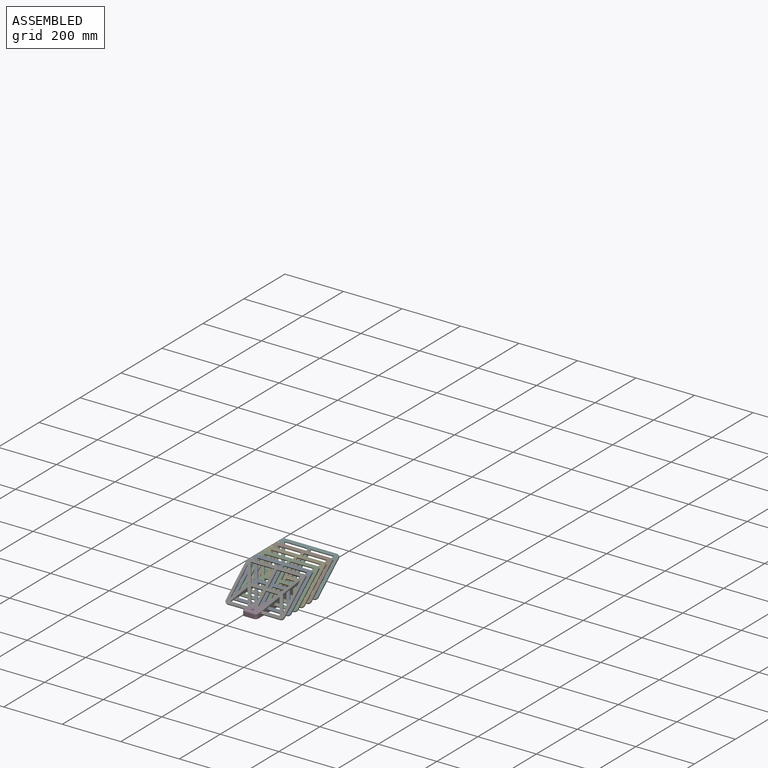
[diagram: assembled view]
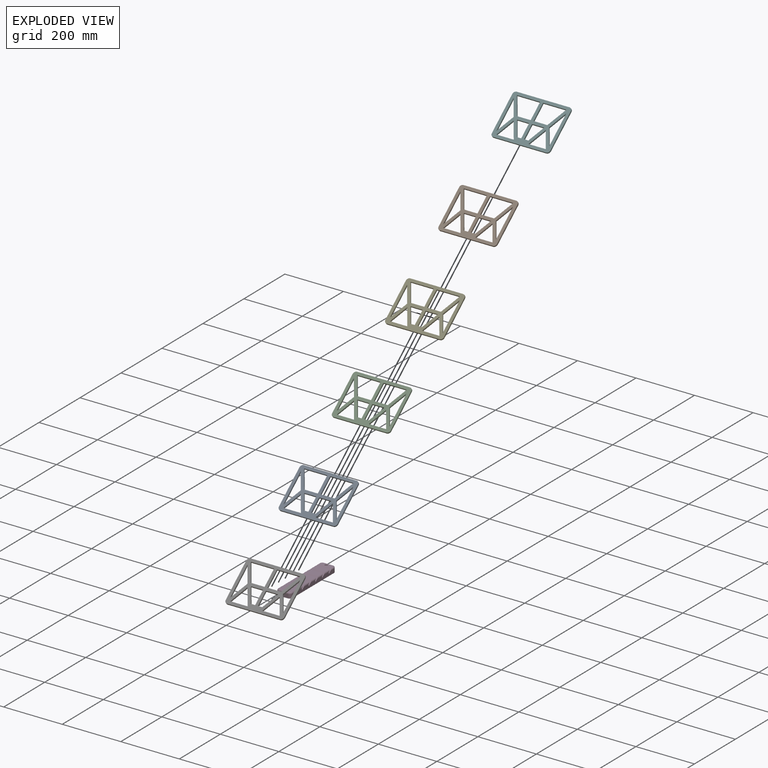
[diagram: exploded view]
GUIDED TOUR — MATED ASSEMBLY (Onshape document bfab527c2a19bf8010437ad4, AutoMate assembly bfab527c2a19bf8010437ad4_e69fc4ce37d980dc7a7c7cb6_1cfd2c61db2470768fffc46c_default)

This assembly has 7 components, labeled P0..P6 below (a component is one placed occurrence of a part; the same part can appear more than once), held together by 6 mates. A mate is a constraint between two components; its type names the relative motion it leaves free:
  FASTENED — locks the two components together rigidly (no relative motion).
Axis/direction vectors are unit vectors and 'through' points are millimeter coordinates, both in the assembly's world frame.

MATES
  1. FASTENED "Fastened 6": P5 <-> P3, direction (0.000, -0.768, -0.640) through (-31.99, 58.69, 2.15) mm
  2. FASTENED "Fastened 5": P1 <-> P3, direction (0.000, -0.768, -0.640) through (-31.99, 25.88, 2.15) mm
  3. FASTENED "Fastened 4": P4 <-> P3, direction (0.000, -0.768, -0.640) through (-31.99, -6.93, 2.15) mm
  4. FASTENED "Fastened 1": P6 <-> P3, direction (0.000, -0.768, -0.640) through (-31.99, -105.36, 2.15) mm
  5. FASTENED "Fastened 2": P0 <-> P3, direction (0.000, -0.768, -0.640) through (-31.99, -72.55, 2.15) mm
  6. FASTENED "Fastened 3": P2 <-> P3, direction (0.000, -0.768, -0.640) through (-31.99, -39.74, 2.15) mm

ASSEMBLY ORDER
  1. P6 — the base component [order verified]
  2. P3 [order verified]
  3. P0 [order verified]
  4. P2 [order verified]
  5. P4 [order verified]
  6. P1 [order verified]
  7. P5 [order verified]
Order-tag legend:
  [order verified] — this step's position reverses a verified removal order: the component was checked to insert without passing through the ones already placed.

Of the 7 components, 6 carry the full construction recipe — the FeatureScript program that regenerates the part's solid from scratch; the rest are supplied as boundary geometry only.
Each toured component is shown spotlighted twice — in the assembled view, then in the exploded view, where a leader line traces a displaced component back to its assembled socket (saturated green if recipe-attached, orange if geometry-only; every other component desaturated gray) — followed by its recipe or geometry summary and the mates that hold it.
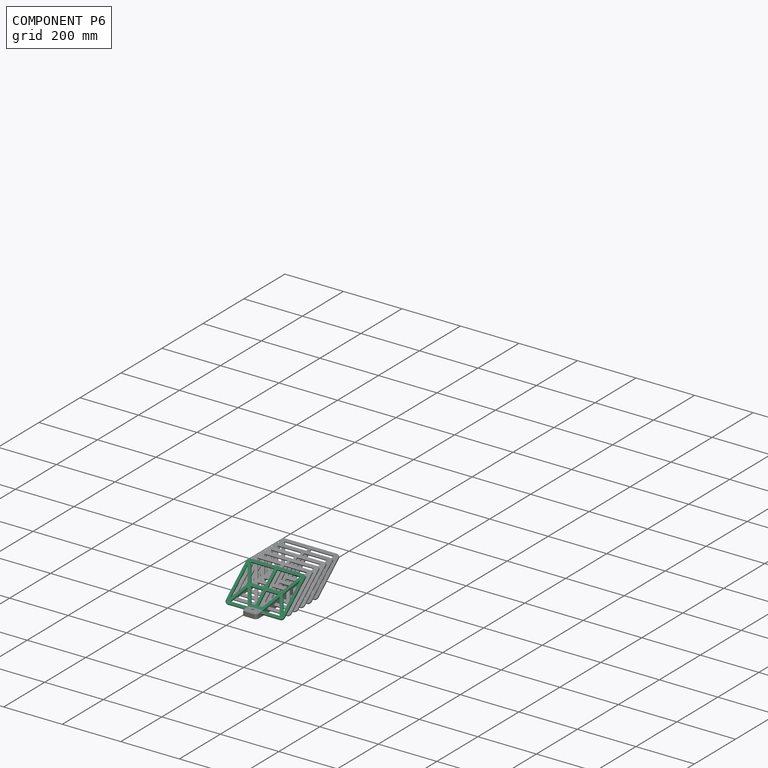
[diagram: component P6 — assembled]
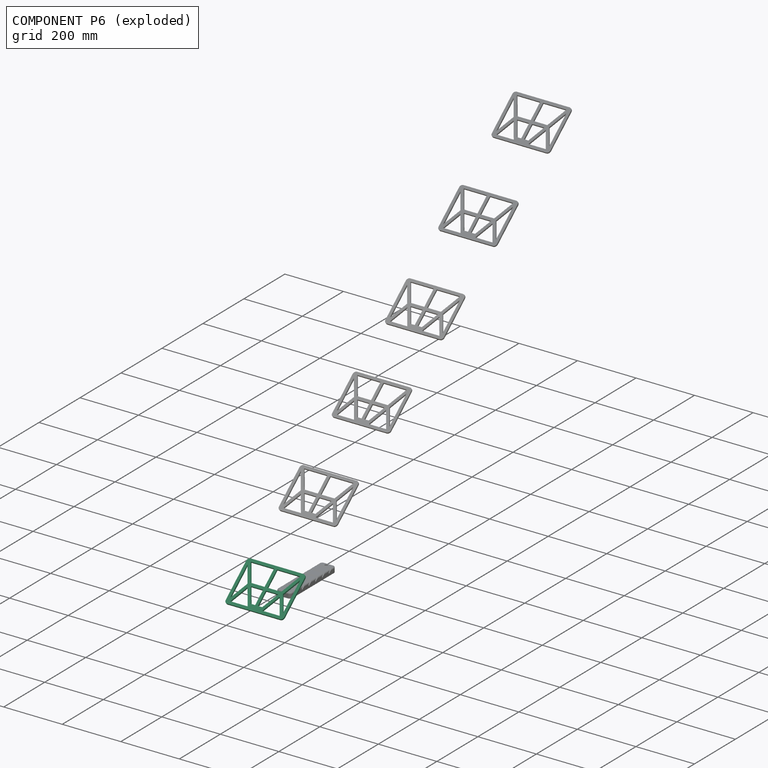
[diagram: component P6 — exploded]
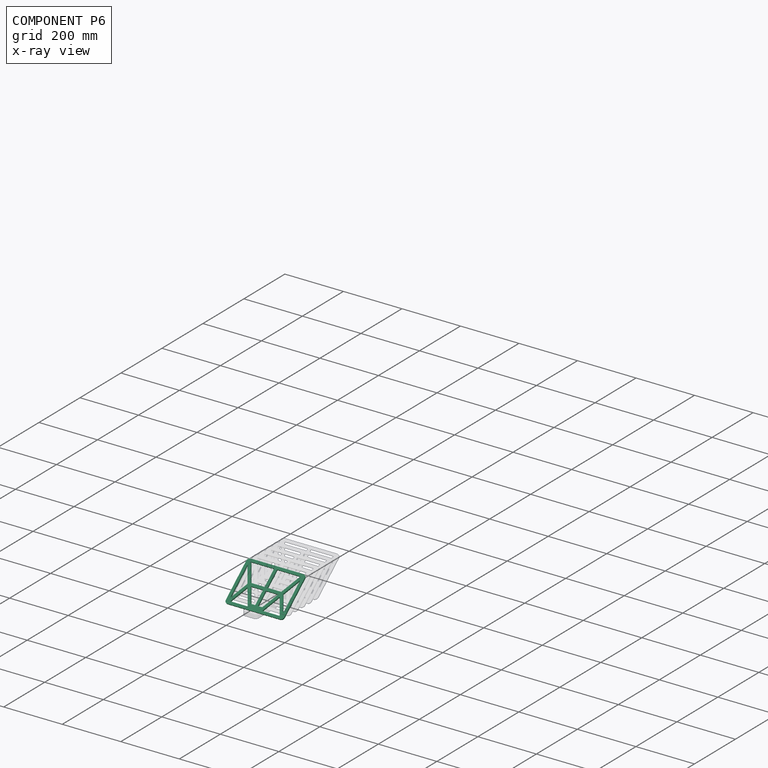
[diagram: component P6 — x-ray view]
COMPONENT P6 — same part as P0 (CADFS 00968949); its construction recipe is shown at P0.
Held by: FASTENED mate "Fastened 1" to P3.
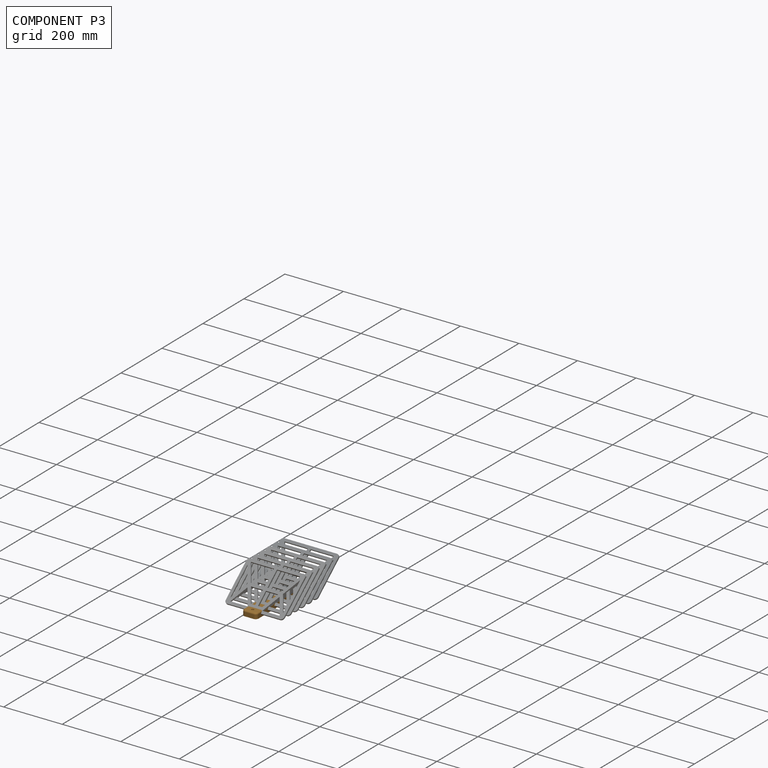
[diagram: component P3 — assembled]
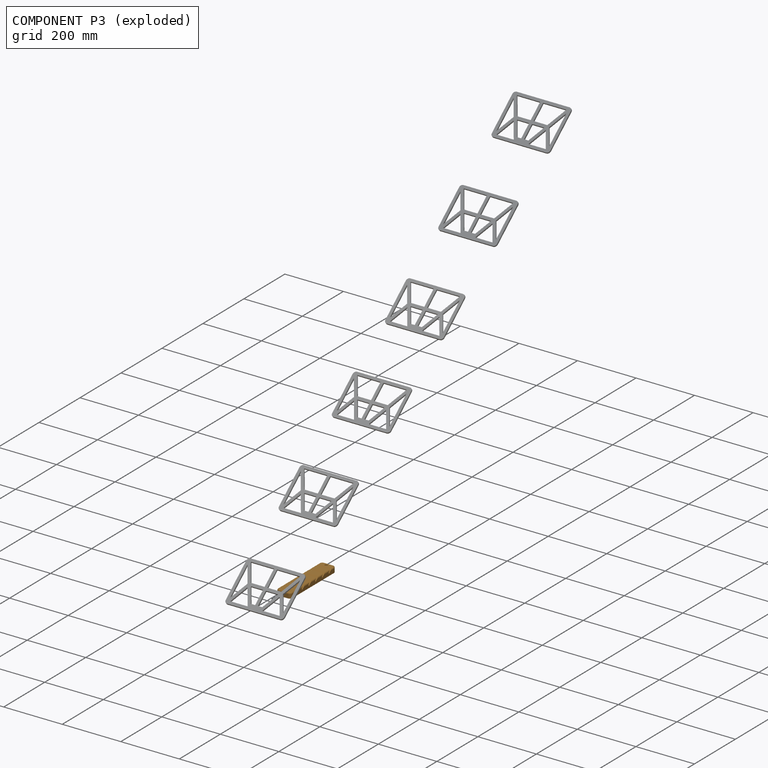
[diagram: component P3 — exploded]
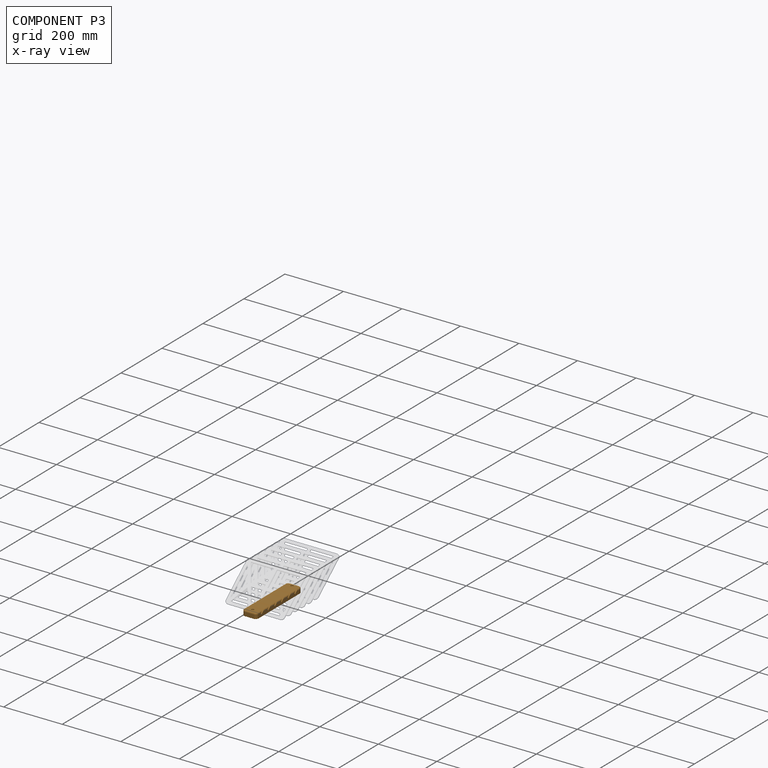
[diagram: component P3 — x-ray view]
COMPONENT P3 — geometry summary (no construction recipe available for this part):
  bounding box: 223.5 x 51.6 x 18.5 mm
  B-rep topology: 1 solid, 66 faces, 360 edges
  volume: 178033 mm^3 (83% of its bounding box)
  symmetry: mirror-symmetric across its x mid-plane
Held by: FASTENED mate "Fastened 6" to P5; FASTENED mate "Fastened 5" to P1; FASTENED mate "Fastened 4" to P4; FASTENED mate "Fastened 1" to P6; FASTENED mate "Fastened 2" to P0; FASTENED mate "Fastened 3" to P2.
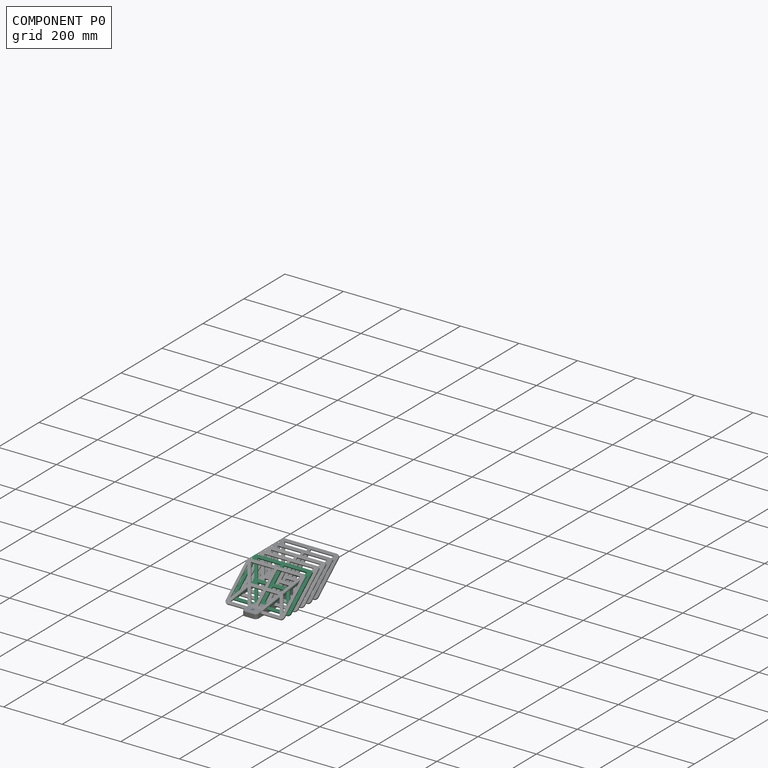
[diagram: component P0 — assembled]
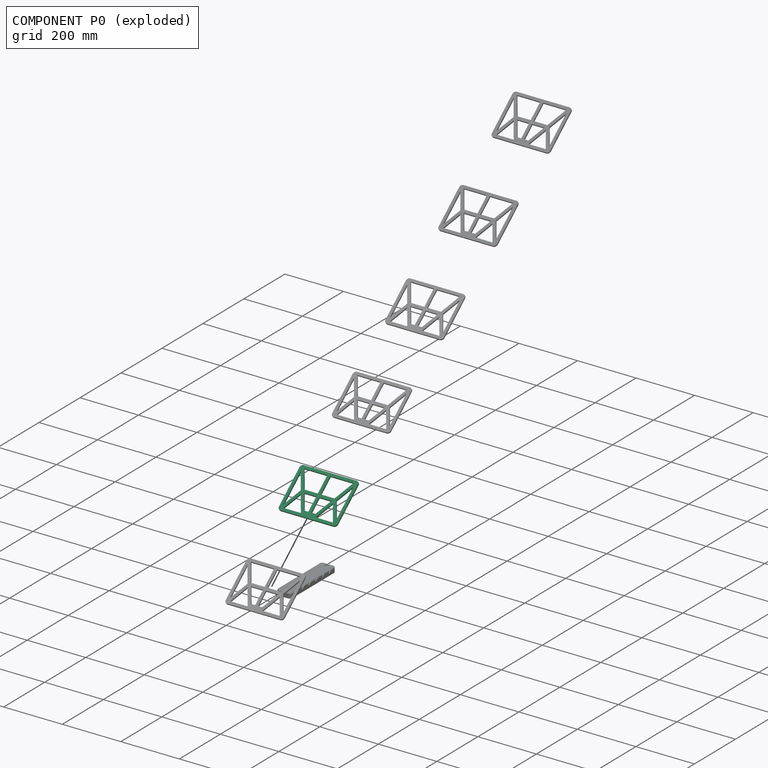
[diagram: component P0 — exploded]
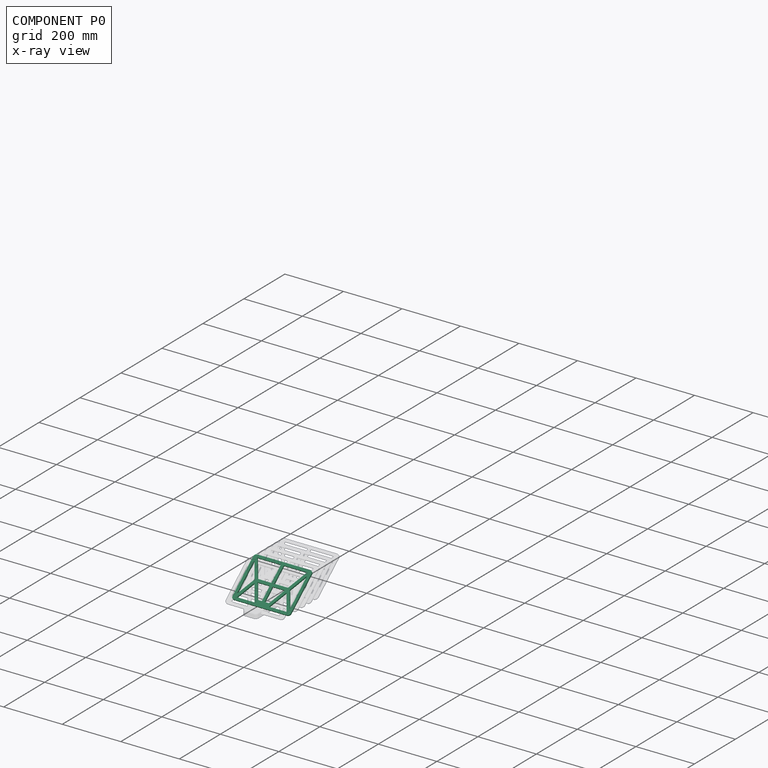
[diagram: component P0 — x-ray view]
COMPONENT P0 — recipe-attached (CADFS 00968949, mesh-verified: the recipe's output STEP matches this component's geometry to below the mesh-comparison resolution (tessellation chordal tolerance ~0.375 mm)).
Held by: FASTENED mate "Fastened 2" to P3.
Construction recipe (FeatureScript — the CAD program that rebuilds this solid; sketch coordinates are in the units given by the * unit suffixes, e.g. mm):

FeatureScript 1511;
import(path : "onshape/std/geometry.fs", version : "1511.0");
import(path : "onshape/std/common.fs", version : "1511.0");
const mm = millimeter;
const VERTEX = EntityType.VERTEX;
const EDGE = EntityType.EDGE;
const FACE = EntityType.FACE;
const BODY = EntityType.BODY;
function v(x, y){return vector(x, y);}
function OD(order){return orderDisambiguation(order);}
function OSD(set){return originalSetDisambiguation(set);}
function TD(topology){return topologyDisambiguation(topology);}
function TDD(query){return trueDependencyDisambiguation(query);}
function sQuery(a, b, c) {return sketchEntityQuery(a, b, c);}

annotation { "Feature Type Name" : "Feature", "Feature Type Description" : "" }
export const myFeature = defineFeature(function(context is Context, id is Id, definition is map)
    precondition{}
    {
        {
            var Q0;
            Q0=qCreatedBy(makeId("Top.planeOp"),FACE);
            var sketch = newSketch(context, id + "F0", { "sketchPlane" : qUnion([Q0])});
            skLineSegment(sketch, "E0.bottom", {"start": v(-100, 75) * mm, "end": v(100, 75) * mm});
            skLineSegment(sketch, "E0.top", {"start": v(-100, -75) * mm, "end": v(100, -75) * mm});
            skLineSegment(sketch, "E0.left", {"start": v(-100, 75) * mm, "end": v(-100, -75) * mm});
            skLineSegment(sketch, "E0.right", {"start": v(100, 75) * mm, "end": v(100, -75) * mm});
            skLineSegment(sketch, "E1.0", {"start": v(-90, 65) * mm, "end": v(90, 65) * mm});
            skLineSegment(sketch, "E1.1", {"start": v(-90, 65) * mm, "end": v(-90, -65) * mm});
            skLineSegment(sketch, "E1.2", {"start": v(-90, -65) * mm, "end": v(-25, -65) * mm});
            skLineSegment(sketch, "E1.3", {"start": v(90, 65) * mm, "end": v(90, -65) * mm});
            skLineSegment(sketch, "E2.top", {"start": v(-25, -55) * mm, "end": v(25, -55) * mm});
            skLineSegment(sketch, "E2.left", {"start": v(-25, -65) * mm, "end": v(-25, -55) * mm});
            skLineSegment(sketch, "E2.right", {"start": v(25, -65) * mm, "end": v(25, -55) * mm});
            skLineSegment(sketch, "E3.trimOffspring", {"start": v(25, -65) * mm, "end": v(90, -65) * mm});
            skLineSegment(sketch, "E4", {"start": v(-25, -55) * mm, "end": v(-90, 65) * mm, "construction": true});
            skLineSegment(sketch, "E5", {"start": v(25, -55) * mm, "end": v(90, 65) * mm, "construction": true});
            skLineSegment(sketch, "E6", {"start": v(0, -55) * mm, "end": v(0, 65) * mm, "construction": true});
            skLineSegment(sketch, "E7", {"start": v(-84.31, 65) * mm, "end": v(-19.31, -55) * mm});
            skLineSegment(sketch, "E8", {"start": v(-24.63, -66.17) * mm, "end": v(-90, 54.5) * mm});
            skLineSegment(sketch, "E9", {"start": v(-5, -55) * mm, "end": v(-5, 65) * mm});
            skLineSegment(sketch, "E10", {"start": v(5, 65) * mm, "end": v(5, -55) * mm});
            skLineSegment(sketch, "E11", {"start": v(24.13, -67.1) * mm, "end": v(90, 54.5) * mm});
            skLineSegment(sketch, "E12", {"start": v(19.31, -55) * mm, "end": v(84.31, 65) * mm});
            skLineSegment(sketch, "E13", {"start": v(-54.8, 0) * mm, "end": v(54.8, 0) * mm, "construction": true});
            skLineSegment(sketch, "E14", {"start": v(-54.8, 0) * mm, "end": v(-90, -65) * mm, "construction": true});
            skLineSegment(sketch, "E15", {"start": v(54.8, 0) * mm, "end": v(90, -65) * mm, "construction": true});
            skLineSegment(sketch, "E16", {"start": v(0, 5.25) * mm, "end": v(57.63, 5.25) * mm});
            skLineSegment(sketch, "E17", {"start": v(57.63, 5.25) * mm, "end": v(90, -54.5) * mm});
            skLineSegment(sketch, "E18", {"start": v(0, -5.25) * mm, "end": v(51.95, -5.25) * mm});
            skLineSegment(sketch, "E19", {"start": v(51.95, -5.25) * mm, "end": v(84.31, -65) * mm});
            skLineSegment(sketch, "E20", {"start": v(0, -5.25) * mm, "end": v(-51.95, -5.25) * mm});
            skLineSegment(sketch, "E21", {"start": v(-51.95, -5.25) * mm, "end": v(-84.31, -65) * mm});
            skLineSegment(sketch, "E22", {"start": v(0, 5.25) * mm, "end": v(-57.63, 5.25) * mm});
            skLineSegment(sketch, "E23", {"start": v(-57.63, 5.25) * mm, "end": v(-90, -54.5) * mm});
            skSolve(sketch);
        }
        {
            var Q0;
            Q0=makeQuery(id+"F0.imprint","IMPRINT",FACE,{"disambiguationData":[TD([[makeQuery(id+"F0.imprint","IMPRINT",EDGE,{"derivedFrom":sQuery(id+"F0.wireOp",EDGE,"E0.bottom")}),-1.0]])]});
            var Q1;
            {var subQ0=sQuery(id+"F0.wireOp",EDGE,"E2.left");Q1=makeQuery(id+"F0.imprint","IMPRINT",FACE,{"disambiguationData":[TD([[makeQuery(id+"F0.imprint","IMPRINT",EDGE,{"derivedFrom":subQ0}),1.0]])]});}
            var Q2;
            {var subQ0=sQuery(id+"F0.wireOp",EDGE,"E9");Q2=makeQuery(id+"F0.imprint","IMPRINT",FACE,{"disambiguationData":[TD([[makeQuery(id+"F0.imprint","IMPRINT",EDGE,{"derivedFrom":subQ0}),-1.0]])]});}
            var Q3;
            {var subQ0=sQuery(id+"F0.wireOp",EDGE,"E2.right");Q3=makeQuery(id+"F0.imprint","IMPRINT",FACE,{"disambiguationData":[TD([[makeQuery(id+"F0.imprint","IMPRINT",EDGE,{"derivedFrom":subQ0}),-1.0]])]});}
            var Q4;
            {var subQ1=sQuery(id+"F0.wireOp",EDGE,"E1.2");var subQ7=sQuery(id+"F0.wireOp",EDGE,"E1.1");var subQ9=makeQuery(id+"F0.imprint","INTERSECT",VERTEX,{"derivedFrom":[subQ7,subQ1]});Q4=makeQuery(id+"F0.imprint","IMPRINT",FACE,{"disambiguationData":[TD([[makeQuery(id+"F0.imprint","IMPRINT",EDGE,{"disambiguationData":[TD([[subQ9,1.0]])],"derivedFrom":subQ7}),1.0]])]});}
            var Q5;
            {var subQ1=sQuery(id+"F0.wireOp",EDGE,"E1.1");var subQ6=sQuery(id+"F0.wireOp",EDGE,"E1.0");var subQ10=makeQuery(id+"F0.imprint","INTERSECT",VERTEX,{"derivedFrom":[subQ6,subQ1]});Q5=makeQuery(id+"F0.imprint","IMPRINT",FACE,{"disambiguationData":[TD([[makeQuery(id+"F0.imprint","IMPRINT",EDGE,{"disambiguationData":[TD([[subQ10,-1.0]])],"derivedFrom":subQ6}),-1.0]])]});}
            var Q6;
            {var subQ3=sQuery(id+"F0.wireOp",EDGE,"E7");var subQ9=sQuery(id+"F0.wireOp",EDGE,"E22");var subQ10=makeQuery(id+"F0.imprint","INTERSECT",VERTEX,{"derivedFrom":[subQ3,subQ9]});Q6=makeQuery(id+"F0.imprint","IMPRINT",FACE,{"disambiguationData":[TD([[makeQuery(id+"F0.imprint","IMPRINT",EDGE,{"disambiguationData":[TD([[subQ10,-1.0]])],"derivedFrom":subQ3}),-1.0]])]});}
            var Q7;
            {var subQ0=sQuery(id+"F0.wireOp",EDGE,"E20");var subQ9=sQuery(id+"F0.wireOp",EDGE,"E9");var subQ10=makeQuery(id+"F0.imprint","INTERSECT",VERTEX,{"derivedFrom":[subQ9,subQ0]});Q7=makeQuery(id+"F0.imprint","IMPRINT",FACE,{"disambiguationData":[TD([[makeQuery(id+"F0.imprint","IMPRINT",EDGE,{"disambiguationData":[TD([[subQ10,-1.0]])],"derivedFrom":subQ9}),-1.0]])]});}
            var Q8;
            {var subQ0=sQuery(id+"F0.wireOp",EDGE,"E22");var subQ1=sQuery(id+"F0.wireOp",EDGE,"E7");var subQ2=makeQuery(id+"F0.imprint","INTERSECT",VERTEX,{"derivedFrom":[subQ1,subQ0]});Q8=makeQuery(id+"F0.imprint","IMPRINT",FACE,{"disambiguationData":[TD([[makeQuery(id+"F0.imprint","IMPRINT",EDGE,{"disambiguationData":[TD([[subQ2,-1.0]])],"derivedFrom":subQ1}),1.0]])]});}
            var Q9;
            {var subQ0=sQuery(id+"F0.wireOp",EDGE,"E16");var subQ1=sQuery(id+"F0.wireOp",EDGE,"E10");var subQ2=makeQuery(id+"F0.imprint","INTERSECT",VERTEX,{"derivedFrom":[subQ1,subQ0]});Q9=makeQuery(id+"F0.imprint","IMPRINT",FACE,{"disambiguationData":[TD([[makeQuery(id+"F0.imprint","IMPRINT",EDGE,{"disambiguationData":[TD([[subQ2,-1.0]])],"derivedFrom":subQ1}),1.0]])]});}
            var Q10;
            {var subQ5=sQuery(id+"F0.wireOp",EDGE,"E11");var subQ9=sQuery(id+"F0.wireOp",EDGE,"E19");var subQ10=makeQuery(id+"F0.imprint","INTERSECT",VERTEX,{"derivedFrom":[subQ5,subQ9]});Q10=makeQuery(id+"F0.imprint","IMPRINT",FACE,{"disambiguationData":[TD([[makeQuery(id+"F0.imprint","IMPRINT",EDGE,{"disambiguationData":[TD([[subQ10,-1.0]])],"derivedFrom":subQ5}),1.0]])]});}
            var Q11;
            {var subQ1=sQuery(id+"F0.wireOp",EDGE,"E1.3");var subQ5=sQuery(id+"F0.wireOp",EDGE,"E3.trimOffspring");var subQ6=makeQuery(id+"F0.imprint","INTERSECT",VERTEX,{"derivedFrom":[subQ1,subQ5]});Q11=makeQuery(id+"F0.imprint","IMPRINT",FACE,{"disambiguationData":[TD([[makeQuery(id+"F0.imprint","IMPRINT",EDGE,{"disambiguationData":[TD([[subQ6,1.0]])],"derivedFrom":subQ1}),-1.0]])]});}
            var Q12;
            {var subQ1=sQuery(id+"F0.wireOp",EDGE,"E1.3");var subQ6=sQuery(id+"F0.wireOp",EDGE,"E1.0");var subQ10=makeQuery(id+"F0.imprint","INTERSECT",VERTEX,{"derivedFrom":[subQ6,subQ1]});Q12=makeQuery(id+"F0.imprint","IMPRINT",FACE,{"disambiguationData":[TD([[makeQuery(id+"F0.imprint","IMPRINT",EDGE,{"disambiguationData":[TD([[subQ10,1.0]])],"derivedFrom":subQ6}),-1.0]])]});}
            extrude(context, id + "F1", {"entities" : qUnion([Q0, Q1, Q2, Q3, Q4, Q5, Q6, Q7, Q8, Q9, Q10, Q11, Q12]), "depth" : 5 * mm, "offsetDistance" : 25 * mm});
        }
        {
            var Q0;
            Q0=makeQuery(id+"F1.opExtrude","SWEPT_EDGE",EDGE,{"disambiguationData":[OSD([sQuery(id+"F0.wireOp",EDGE,"E0.top"),sQuery(id+"F0.wireOp",EDGE,"E0.left")])]});
            var Q1;
            Q1=makeQuery(id+"F1.opExtrude","SWEPT_EDGE",EDGE,{"disambiguationData":[OSD([sQuery(id+"F0.wireOp",EDGE,"E0.top"),sQuery(id+"F0.wireOp",EDGE,"E0.right")])]});
            var Q2;
            Q2=makeQuery(id+"F1.opExtrude","SWEPT_EDGE",EDGE,{"disambiguationData":[OSD([sQuery(id+"F0.wireOp",EDGE,"E0.bottom"),sQuery(id+"F0.wireOp",EDGE,"E0.right")])]});
            var Q3;
            Q3=makeQuery(id+"F1.opExtrude","SWEPT_EDGE",EDGE,{"disambiguationData":[OSD([sQuery(id+"F0.wireOp",EDGE,"E0.bottom"),sQuery(id+"F0.wireOp",EDGE,"E0.left")])]});
            fillet(context, id + "F2", {"entities" : qUnion([Q0, Q1, Q2, Q3]), "radius" : 10 * mm, "tangentPropagation" : true, "allowEdgeOverflow" : false});
        }
    });
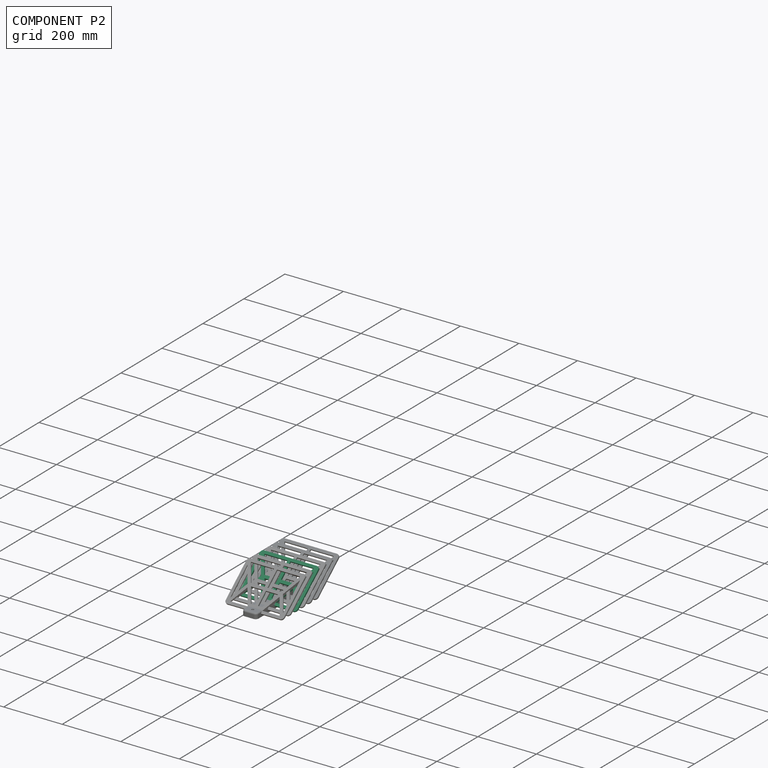
[diagram: component P2 — assembled]
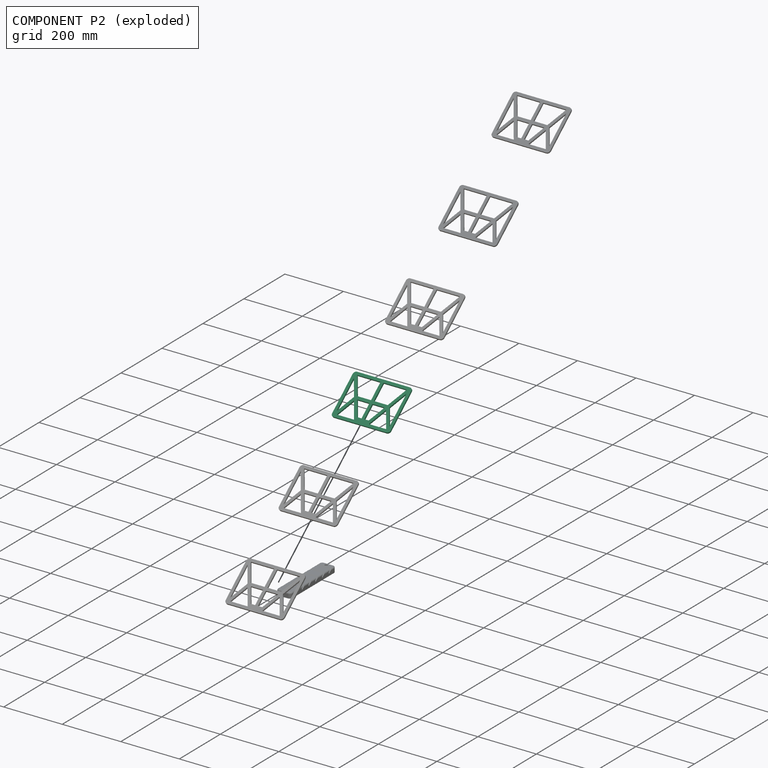
[diagram: component P2 — exploded]
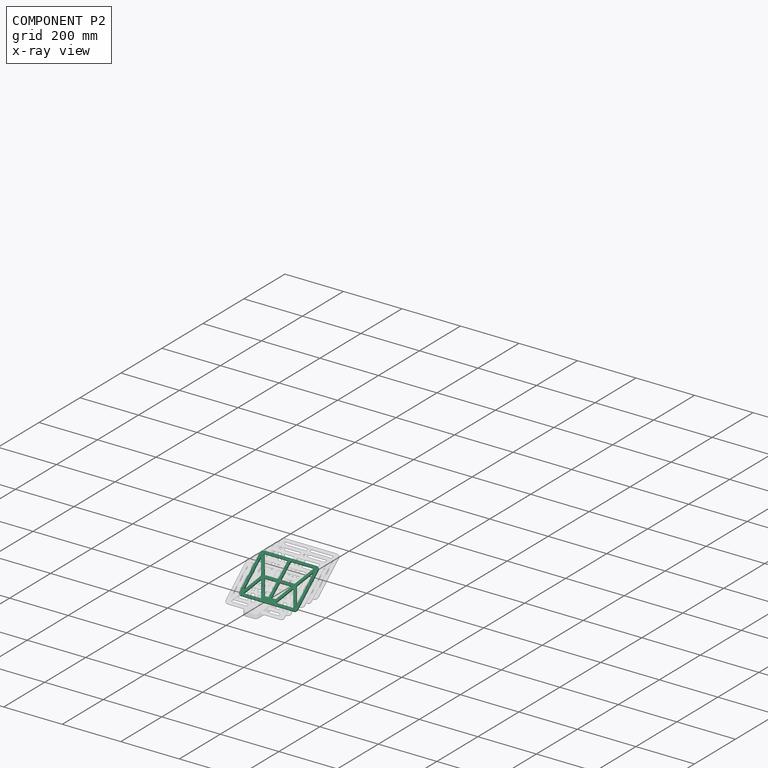
[diagram: component P2 — x-ray view]
COMPONENT P2 — same part as P0 (CADFS 00968949); its construction recipe is shown at P0.
Held by: FASTENED mate "Fastened 3" to P3.
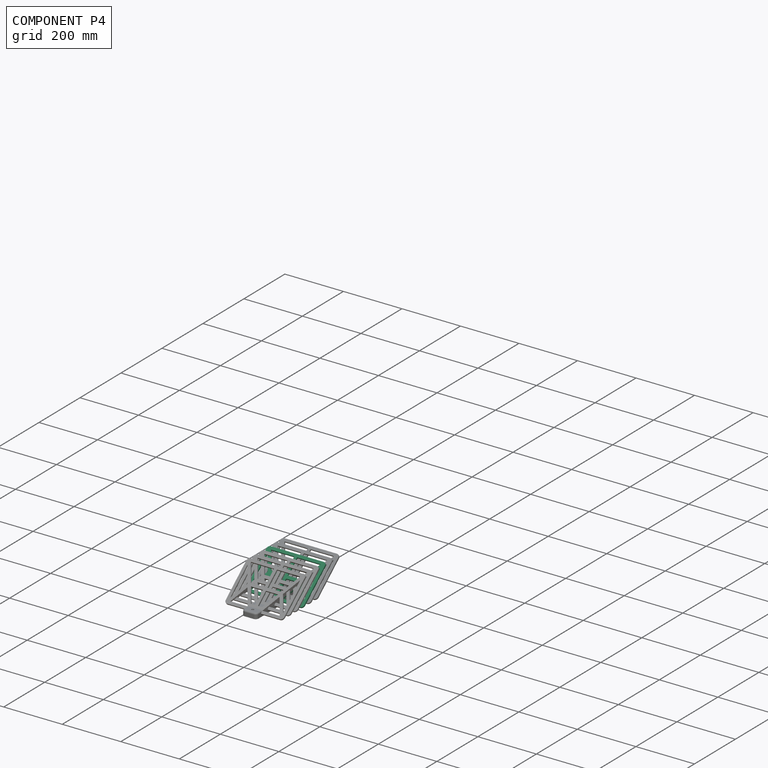
[diagram: component P4 — assembled]
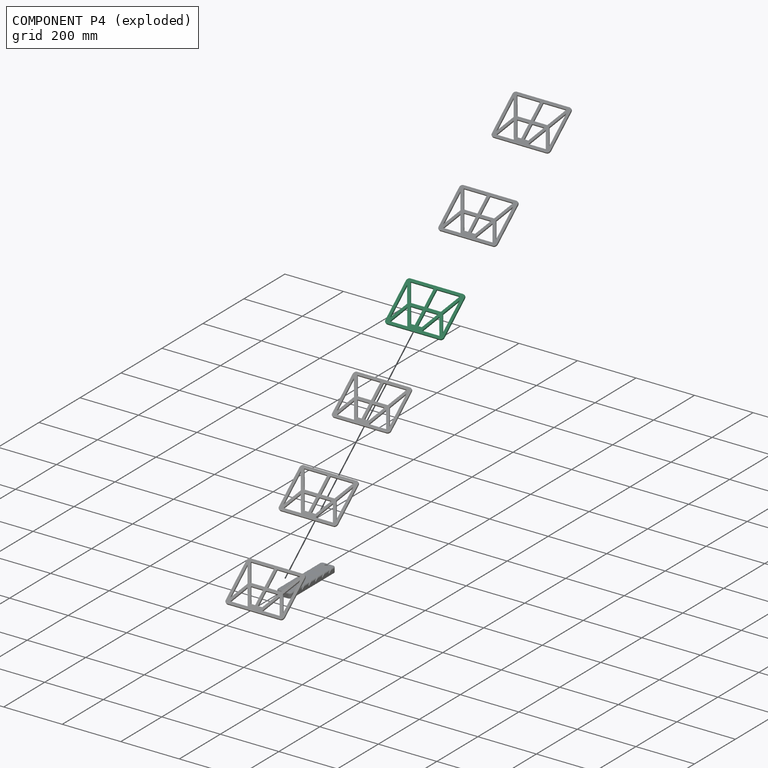
[diagram: component P4 — exploded]
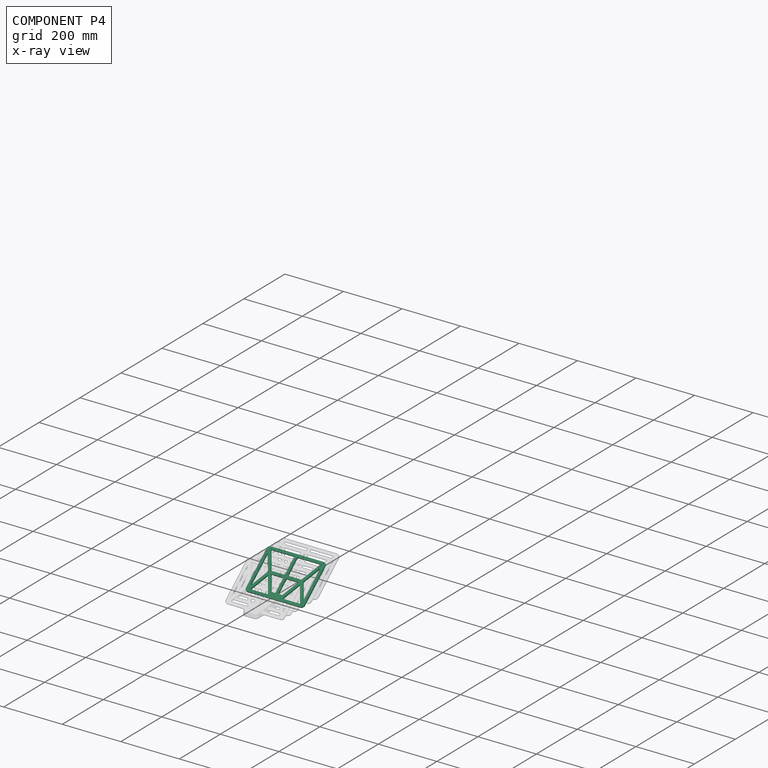
[diagram: component P4 — x-ray view]
COMPONENT P4 — same part as P0 (CADFS 00968949); its construction recipe is shown at P0.
Held by: FASTENED mate "Fastened 4" to P3.
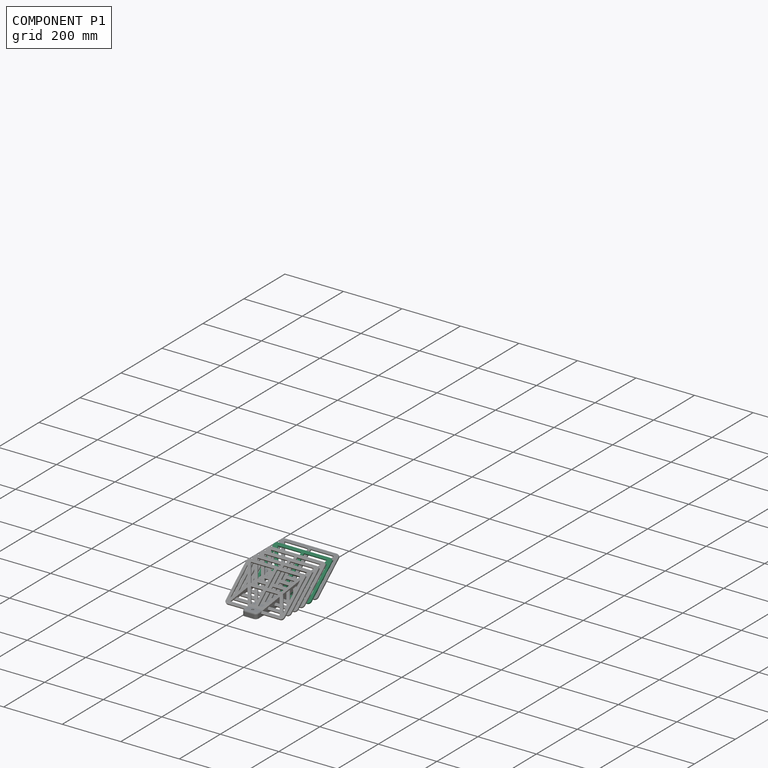
[diagram: component P1 — assembled]
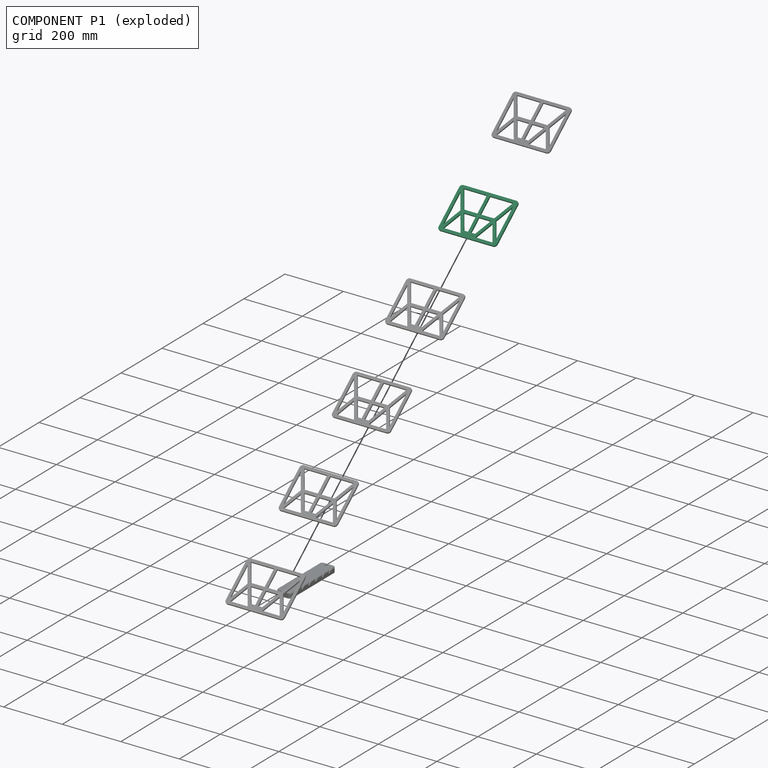
[diagram: component P1 — exploded]
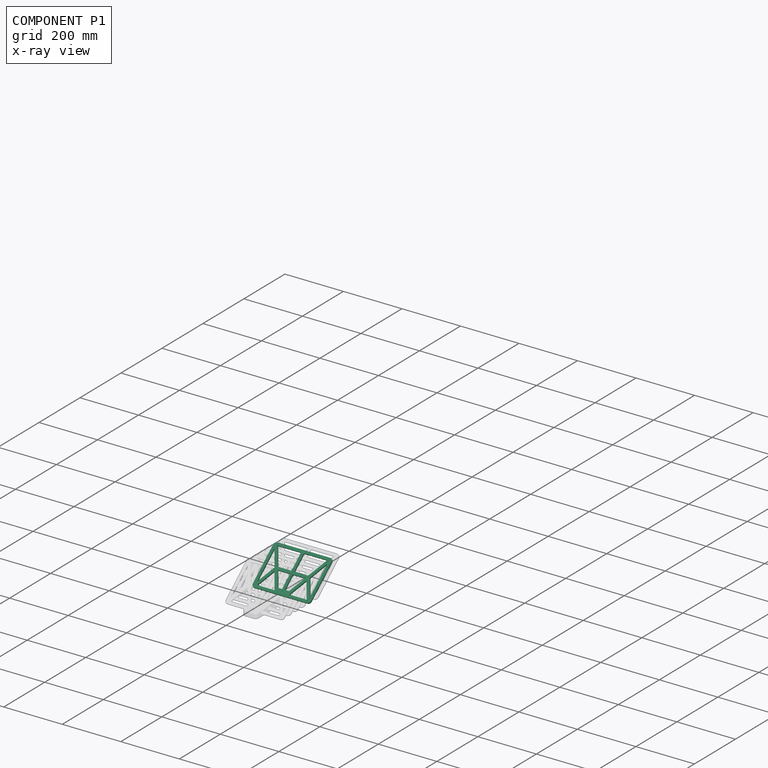
[diagram: component P1 — x-ray view]
COMPONENT P1 — same part as P0 (CADFS 00968949); its construction recipe is shown at P0.
Held by: FASTENED mate "Fastened 5" to P3.
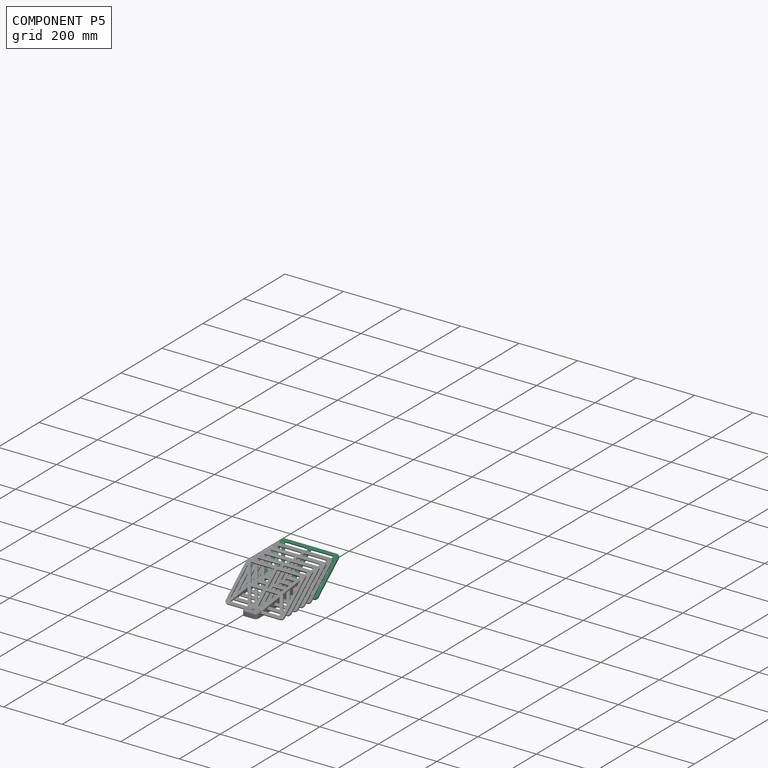
[diagram: component P5 — assembled]
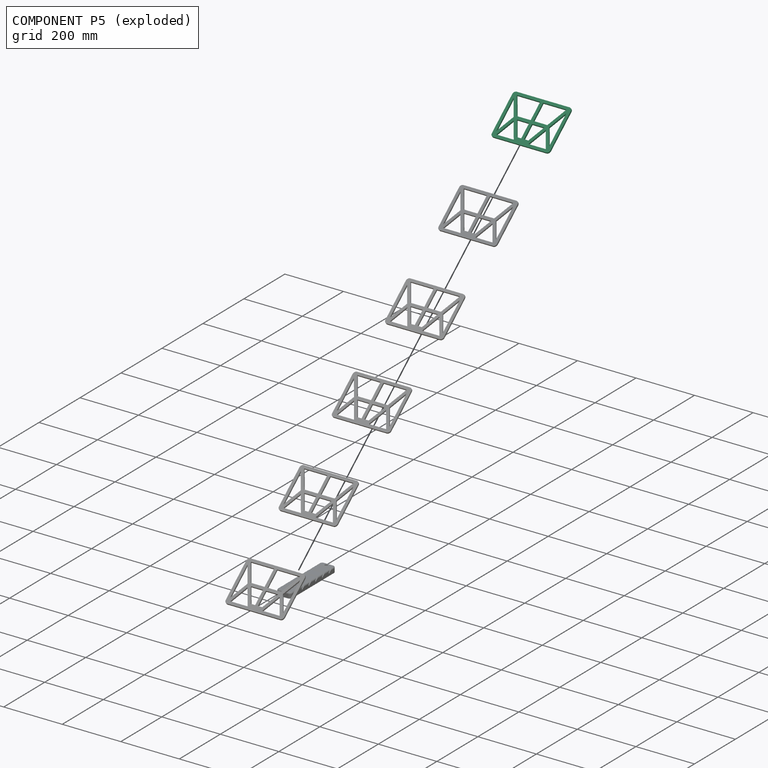
[diagram: component P5 — exploded]
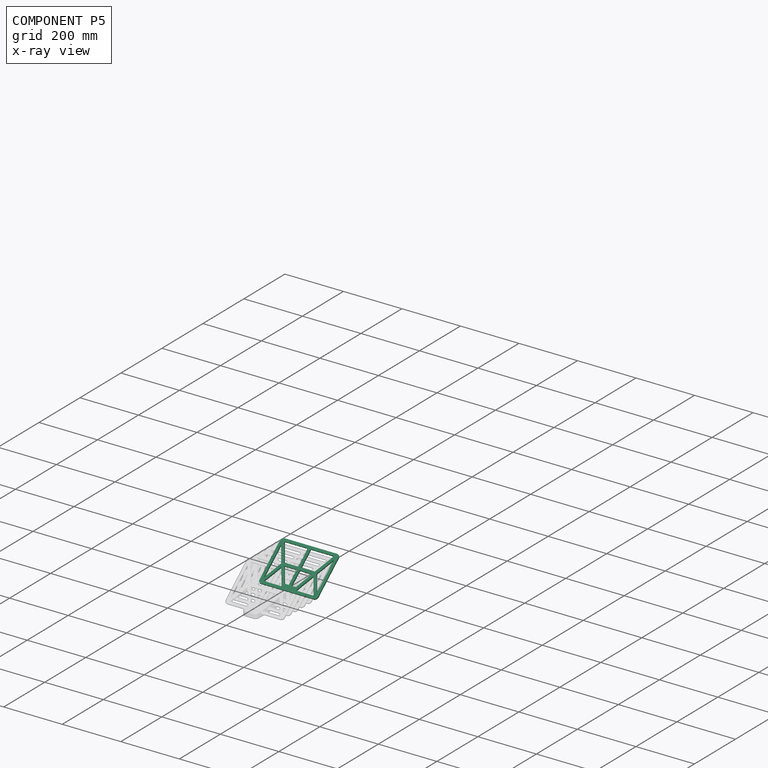
[diagram: component P5 — x-ray view]
COMPONENT P5 — same part as P0 (CADFS 00968949); its construction recipe is shown at P0.
Held by: FASTENED mate "Fastened 6" to P3.
PROVENANCE & LICENSES
Assembly (occurrences, transforms, mates, per-part STEP geometry): AutoMate dataset, Zenodo record 7776208, CC0.
Construction recipes: CADFS (HuggingFace VladPyatov/CADFS, CC-BY-4.0, layered over the ABC dataset), FeatureScript reconstruction programs keyed by ABC model id.
Join: ABC meta listings map ABC model id -> Onshape documentId; within a shared document, parts are matched by geometric signature (bounding-box dims + volume at 0.1% relative tolerance, exact B-rep face/solid counts).
Verification: 6 of this assembly's 7 components carry a recipe attachment, and every attachment is mesh-verified: the CADFS STEP and the AutoMate member STEP were compared as meshes in their shared local frame (symmetric sampled-point-to-mesh distance); worst across the 6 attachments: below the mesh-comparison resolution (tessellation chordal tolerance ~0.375 mm) on a 250 mm part.
Renders: orthographic iso camera (az 35 / el 25); the floor grid conveys scale (grid pitch printed in each image; no ruler). In the exploded view each component is displaced by its stored offset vector: the offsets alone carry the explosion direction (mate normal/axis signs are not orientation cues and do not encode it), and separation distances are assigned per mate-chain, not proportionally to assembly-order depth.
